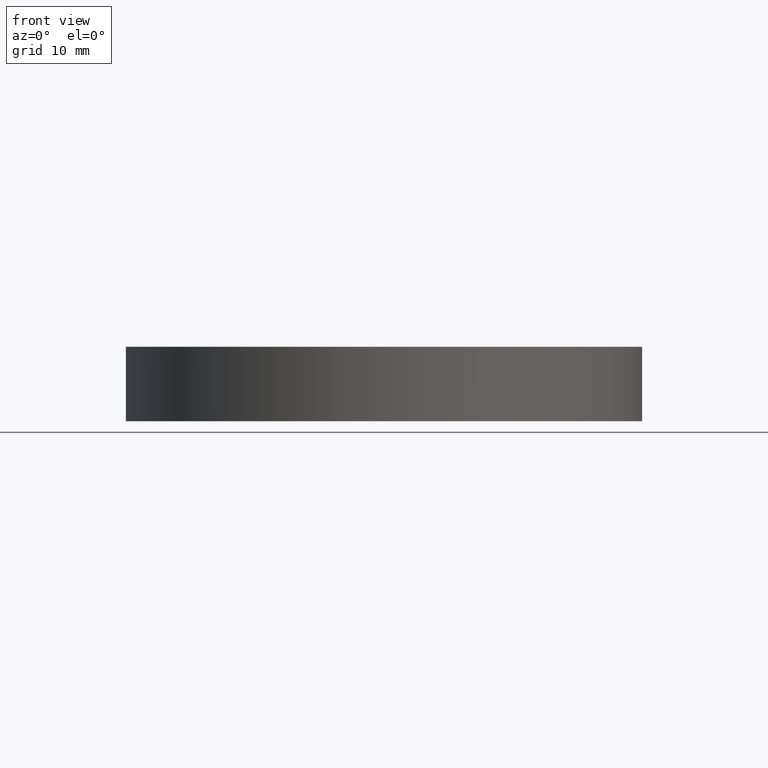
[diagram: clean part render]
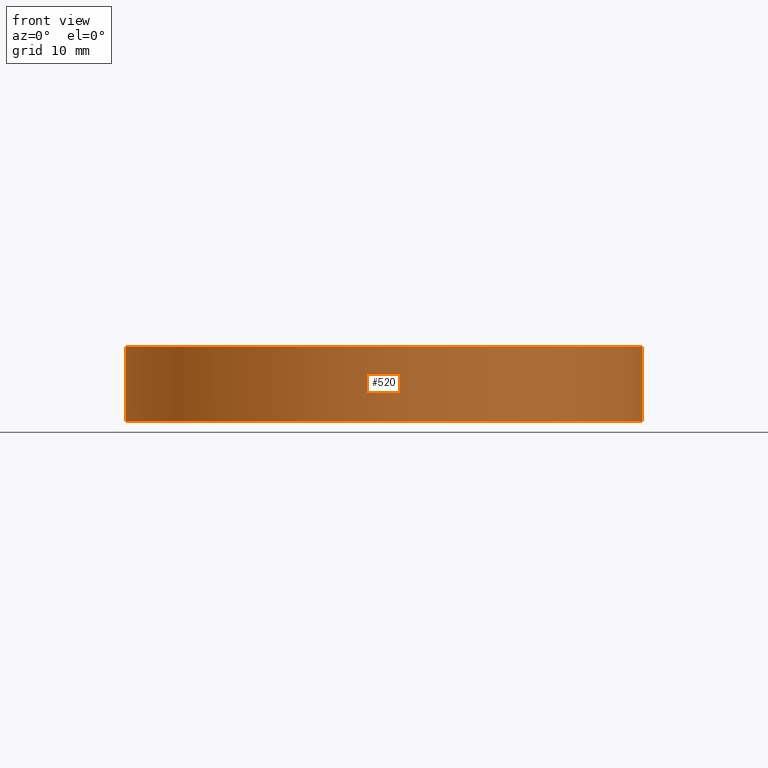
[diagram: same view with one face highlighted and labeled with its STEP entity id]
A machine part, front view. The second image highlights one B-rep face of the part: STEP entity #520.
In plain terms, the highlighted cylindrical surface (partial cylindrical patch) has radius 27 mm, axis along (-0, -0, -1).
Its self-contained STEP definition (entity closure, byte-faithful):
#28 = CARTESIAN_POINT ( 'NONE',  ( 27.00000000000000000, 3.306546357697853700E-015, 7.799999999999999800 ) ) ;
#40 = VERTEX_POINT ( 'NONE', #59 ) ;
#48 = EDGE_CURVE ( 'NONE', #434, #40, #399, .T. ) ;
#51 = DIRECTION ( 'NONE',  ( 1.000000000000000000, 0.0000000000000000000, 0.0000000000000000000 ) ) ;
#54 = AXIS2_PLACEMENT_3D ( 'NONE', #495, #188, #51 ) ;
#59 = CARTESIAN_POINT ( 'NONE',  ( 27.00000000000000000, 3.306546357697853700E-015, 7.799999999999999800 ) ) ;
#83 = EDGE_CURVE ( 'NONE', #492, #628, #304, .T. ) ;
#105 = CARTESIAN_POINT ( 'NONE',  ( 0.0000000000000000000, 0.0000000000000000000, 7.799999999999999800 ) ) ;
#140 = ORIENTED_EDGE ( 'NONE', *, *, #208, .F. ) ;
#188 = DIRECTION ( 'NONE',  ( 0.0000000000000000000, 0.0000000000000000000, 1.000000000000000000 ) ) ;
#195 = VECTOR ( 'NONE', #327, 1000.000000000000000 ) ;
#202 = VECTOR ( 'NONE', #409, 1000.000000000000000 ) ;
#208 = EDGE_CURVE ( 'NONE', #40, #628, #546, .T. ) ;
#214 = AXIS2_PLACEMENT_3D ( 'NONE', #105, #352, #541 ) ;
#230 = FACE_OUTER_BOUND ( 'NONE', #640, .T. ) ;
#294 = CARTESIAN_POINT ( 'NONE',  ( 0.0000000000000000000, 0.0000000000000000000, 7.799999999999999800 ) ) ;
#297 = DIRECTION ( 'NONE',  ( -1.000000000000000000, 0.0000000000000000000, 0.0000000000000000000 ) ) ;
#304 = CIRCLE ( 'NONE', #54, 27.00000000000000000 ) ;
#307 = CARTESIAN_POINT ( 'NONE',  ( -27.00000000000000000, 0.0000000000000000000, 7.799999999999999800 ) ) ;
#327 = DIRECTION ( 'NONE',  ( -0.0000000000000000000, -0.0000000000000000000, -1.000000000000000000 ) ) ;
#334 = AXIS2_PLACEMENT_3D ( 'NONE', #294, #532, #297 ) ;
#352 = DIRECTION ( 'NONE',  ( 0.0000000000000000000, 0.0000000000000000000, 1.000000000000000000 ) ) ;
#399 = CIRCLE ( 'NONE', #214, 27.00000000000000000 ) ;
#408 = LINE ( 'NONE', #307, #202 ) ;
#409 = DIRECTION ( 'NONE',  ( -0.0000000000000000000, -0.0000000000000000000, -1.000000000000000000 ) ) ;
#434 = VERTEX_POINT ( 'NONE', #642 ) ;
#446 = ORIENTED_EDGE ( 'NONE', *, *, #83, .T. ) ;
#492 = VERTEX_POINT ( 'NONE', #531 ) ;
#495 = CARTESIAN_POINT ( 'NONE',  ( 0.0000000000000000000, 0.0000000000000000000, 0.0000000000000000000 ) ) ;
#520 = ADVANCED_FACE ( 'NONE', ( #230 ), #608, .T. ) ;
#531 = CARTESIAN_POINT ( 'NONE',  ( -27.00000000000000000, 0.0000000000000000000, 0.0000000000000000000 ) ) ;
#532 = DIRECTION ( 'NONE',  ( -0.0000000000000000000, -0.0000000000000000000, -1.000000000000000000 ) ) ;
#541 = DIRECTION ( 'NONE',  ( 1.000000000000000000, 0.0000000000000000000, 0.0000000000000000000 ) ) ;
#546 = LINE ( 'NONE', #28, #195 ) ;
#550 = CARTESIAN_POINT ( 'NONE',  ( 27.00000000000000000, 3.306546357697853700E-015, 0.0000000000000000000 ) ) ;
#567 = ORIENTED_EDGE ( 'NONE', *, *, #48, .F. ) ;
#600 = ORIENTED_EDGE ( 'NONE', *, *, #619, .T. ) ;
#608 = CYLINDRICAL_SURFACE ( 'NONE', #334, 27.00000000000000000 ) ;
#619 = EDGE_CURVE ( 'NONE', #434, #492, #408, .T. ) ;
#628 = VERTEX_POINT ( 'NONE', #550 ) ;
#640 = EDGE_LOOP ( 'NONE', ( #140, #567, #600, #446 ) ) ;
#642 = CARTESIAN_POINT ( 'NONE',  ( -27.00000000000000000, 0.0000000000000000000, 7.799999999999999800 ) ) ;